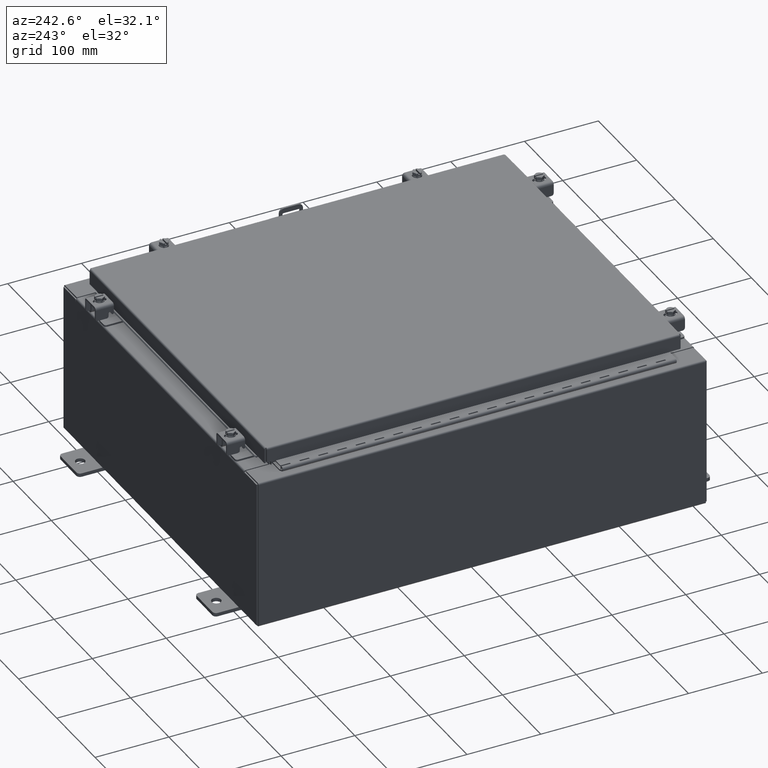
[diagram: clean part render]
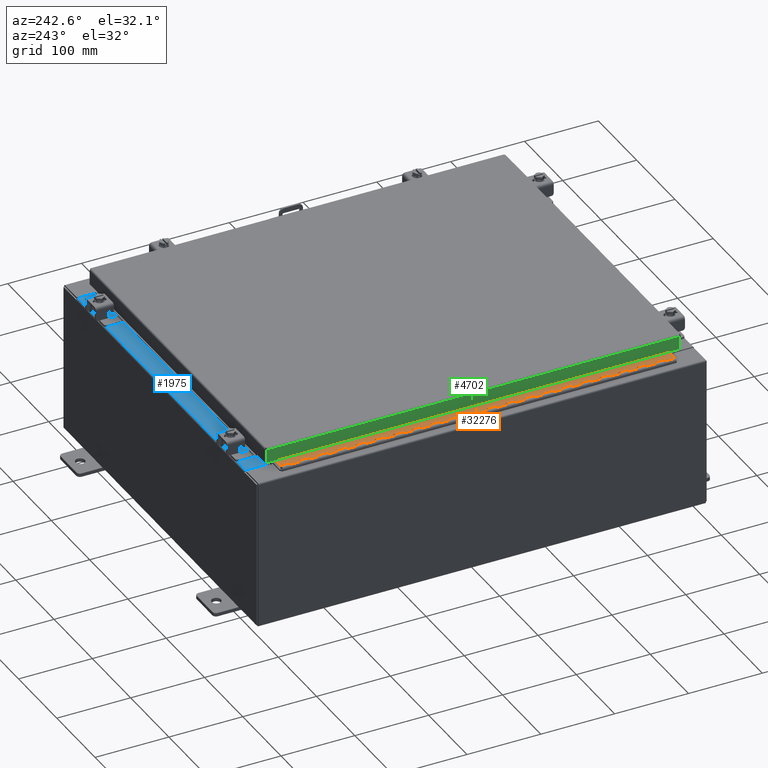
[diagram: same view with three faces highlighted in distinct colors, each labeled with its STEP entity id]
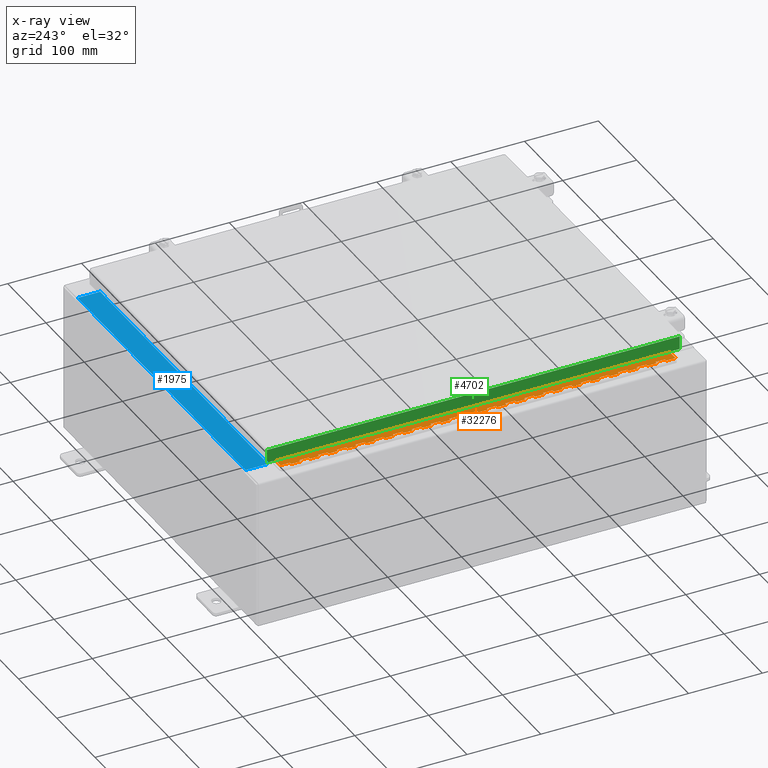
[diagram: x-ray of the same camera — body ghosted, the three highlighted faces saturated]
A machine part, auxiliary view with three faces highlighted in distinct colors.
The next image is the same camera in x-ray (body ghosted, the three faces saturated) — at least one of them is partly hidden behind the body in this view.
Their STEP definitions:

[orange] entity #32276 — the highlighted planar face has unit normal (-0, 0, 1).
#42 = LINE ( 'NONE', #29912, #31449 ) ;
#45 = VERTEX_POINT ( 'NONE', #29498 ) ;
#76 = LINE ( 'NONE', #12595, #19530 ) ;
#91 = CARTESIAN_POINT ( 'NONE',  ( -0.6869999999999987200, 0.5504999999999956600, -11.50000000000000000 ) ) ;
#126 = DIRECTION ( 'NONE',  ( -3.389037039080714800E-015, -1.000000000000000000, 5.534950327680770500E-031 ) ) ;
#138 = VECTOR ( 'NONE', #29131, 39.37007874015748100 ) ;
#173 = CARTESIAN_POINT ( 'NONE',  ( -0.6869999999999976100, 0.8005000000000001000, -16.00000000000000000 ) ) ;
#189 = CARTESIAN_POINT ( 'NONE',  ( -0.6869999999999987200, 0.5504999999999999900, -14.49999999999999800 ) ) ;
#304 = VECTOR ( 'NONE', #30487, 39.37007874015748100 ) ;
#331 = CARTESIAN_POINT ( 'NONE',  ( -0.6870000000000041600, 0.6754999999999985500, -21.00000000000000400 ) ) ;
#350 = EDGE_CURVE ( 'NONE', #18311, #8308, #5552, .T. ) ;
#405 = ORIENTED_EDGE ( 'NONE', *, *, #9804, .T. ) ;
#432 = VECTOR ( 'NONE', #7890, 39.37007874015748100 ) ;
#438 = VERTEX_POINT ( 'NONE', #5435 ) ;
#509 = VERTEX_POINT ( 'NONE', #5543 ) ;
#592 = CARTESIAN_POINT ( 'NONE',  ( -0.6870000000000041600, 0.6754999999999985500, -21.00000000000000400 ) ) ;
#608 = VERTEX_POINT ( 'NONE', #3440 ) ;
#611 = VECTOR ( 'NONE', #17604, 39.37007874015748100 ) ;
#683 = VERTEX_POINT ( 'NONE', #1338 ) ;
#783 = VECTOR ( 'NONE', #25920, 39.37007874015748100 ) ;
#907 = ORIENTED_EDGE ( 'NONE', *, *, #6052, .F. ) ;
#917 = VERTEX_POINT ( 'NONE', #13064 ) ;
#1091 = LINE ( 'NONE', #30033, #7027 ) ;
#1140 = VECTOR ( 'NONE', #12354, 39.37007874015748100 ) ;
#1208 = ORIENTED_EDGE ( 'NONE', *, *, #16838, .F. ) ;
#1212 = CARTESIAN_POINT ( 'NONE',  ( -0.6869999999999987200, 0.6754999999999964400, -19.50000000000000000 ) ) ;
#1338 = CARTESIAN_POINT ( 'NONE',  ( -0.6869999999999987200, 0.6754999999999996600, -5.999999999999999100 ) ) ;
#1377 = VERTEX_POINT ( 'NONE', #7280 ) ;
#1388 = CARTESIAN_POINT ( 'NONE',  ( -0.6869999999999987200, 0.5504999999999945500, -15.50000000000000000 ) ) ;
#1401 = CARTESIAN_POINT ( 'NONE',  ( -0.6869999999999987200, 0.5504999999999956600, -18.50000000000000000 ) ) ;
#1409 = ORIENTED_EDGE ( 'NONE', *, *, #15577, .F. ) ;
#1458 = CARTESIAN_POINT ( 'NONE',  ( -0.6870000000000041600, 0.6754999999999985500, -21.00000000000000400 ) ) ;
#1464 = CARTESIAN_POINT ( 'NONE',  ( -0.6870000000000041600, 0.6755000000000029900, -17.99999999999999600 ) ) ;
#1507 = VECTOR ( 'NONE', #14188, 39.37007874015748100 ) ;
#1564 = VERTEX_POINT ( 'NONE', #29965 ) ;
#1587 = VERTEX_POINT ( 'NONE', #19825 ) ;
#1688 = DIRECTION ( 'NONE',  ( 2.922729653843850500E-028, 6.002361762138956300E-031, -1.000000000000000000 ) ) ;
#1708 = LINE ( 'NONE', #12740, #27959 ) ;
#1779 = EDGE_CURVE ( 'NONE', #6017, #45, #1905, .T. ) ;
#1797 = VERTEX_POINT ( 'NONE', #25823 ) ;
#1883 = LINE ( 'NONE', #2032, #27328 ) ;
#1905 = LINE ( 'NONE', #13035, #14605 ) ;
#2023 = CARTESIAN_POINT ( 'NONE',  ( -0.6869999999999987200, 0.6754999999999996600, -6.499999999999999100 ) ) ;
#2029 = CARTESIAN_POINT ( 'NONE',  ( -0.6870000000000041600, 0.8005000000000001000, -1.999999999999998400 ) ) ;
#2032 = CARTESIAN_POINT ( 'NONE',  ( -0.6869999999999998300, 0.07549999999999350300, -21.00000000000000000 ) ) ;
#2075 = VECTOR ( 'NONE', #21018, 39.37007874015748100 ) ;
#2081 = VERTEX_POINT ( 'NONE', #4153 ) ;
#2126 = ORIENTED_EDGE ( 'NONE', *, *, #16691, .F. ) ;
#2139 = CARTESIAN_POINT ( 'NONE',  ( -0.6870000000000052700, 0.5504999999999945500, -4.499999999999998200 ) ) ;
#2259 = VERTEX_POINT ( 'NONE', #7358 ) ;
#2322 = CARTESIAN_POINT ( 'NONE',  ( -0.6870000000000041600, 0.8005000000000023200, -12.49999999999999800 ) ) ;
#2365 = LINE ( 'NONE', #28916, #22624 ) ;
#2429 = ORIENTED_EDGE ( 'NONE', *, *, #29969, .F. ) ;
#2462 = CARTESIAN_POINT ( 'NONE',  ( -0.6869999999999987200, 0.5504999999999956600, -1.999999999999998400 ) ) ;
#2532 = ORIENTED_EDGE ( 'NONE', *, *, #28612, .F. ) ;
#2575 = DIRECTION ( 'NONE',  ( -2.922729653843850500E-028, -6.002361762138956300E-031, 1.000000000000000000 ) ) ;
#2617 = EDGE_CURVE ( 'NONE', #917, #16768, #24131, .T. ) ;
#2623 = ORIENTED_EDGE ( 'NONE', *, *, #25132, .F. ) ;
#2641 = VECTOR ( 'NONE', #12970, 39.37007874015748100 ) ;
#2693 = EDGE_CURVE ( 'NONE', #7999, #25757, #21759, .T. ) ;
#2697 = EDGE_CURVE ( 'NONE', #17661, #9188, #23338, .T. ) ;
#2793 = EDGE_CURVE ( 'NONE', #16128, #26291, #20163, .T. ) ;
#2851 = ORIENTED_EDGE ( 'NONE', *, *, #2939, .F. ) ;
#2918 = LINE ( 'NONE', #12127, #23167 ) ;
#2939 = EDGE_CURVE ( 'NONE', #14576, #11944, #28929, .T. ) ;
#2961 = ORIENTED_EDGE ( 'NONE', *, *, #14551, .T. ) ;
#2989 = EDGE_CURVE ( 'NONE', #32219, #509, #1883, .T. ) ;
#2998 = EDGE_CURVE ( 'NONE', #16641, #1377, #1091, .T. ) ;
#3093 = VECTOR ( 'NONE', #26463, 39.37007874015748100 ) ;
#3181 = EDGE_CURVE ( 'NONE', #28315, #26260, #29293, .T. ) ;
#3182 = VERTEX_POINT ( 'NONE', #12991 ) ;
#3195 = DIRECTION ( 'NONE',  ( -3.389037039080714800E-015, -1.000000000000000000, 5.534950327680770500E-031 ) ) ;
#3343 = ORIENTED_EDGE ( 'NONE', *, *, #19802, .F. ) ;
#3385 = EDGE_CURVE ( 'NONE', #11944, #23803, #3437, .T. ) ;
#3437 = LINE ( 'NONE', #4235, #22897 ) ;
#3440 = CARTESIAN_POINT ( 'NONE',  ( -0.6870000000000019400, 0.6755000000000029900, -6.999999999999998200 ) ) ;
#3558 = VECTOR ( 'NONE', #19131, 39.37007874015748100 ) ;
#3605 = LINE ( 'NONE', #10598, #30648 ) ;
#3622 = ORIENTED_EDGE ( 'NONE', *, *, #29389, .F. ) ;
#3727 = ORIENTED_EDGE ( 'NONE', *, *, #20194, .F. ) ;
#3737 = LINE ( 'NONE', #19212, #16442 ) ;
#3742 = VERTEX_POINT ( 'NONE', #31225 ) ;
#3793 = ORIENTED_EDGE ( 'NONE', *, *, #23030, .F. ) ;
#3826 = DIRECTION ( 'NONE',  ( 2.922729653843850500E-028, 6.002361762138956300E-031, -1.000000000000000000 ) ) ;
#3832 = VERTEX_POINT ( 'NONE', #1212 ) ;
#3847 = CARTESIAN_POINT ( 'NONE',  ( -0.6870000000000041600, 0.6754999999999996600, -14.49999999999999800 ) ) ;
#3888 = DIRECTION ( 'NONE',  ( 3.389037039080714800E-015, 1.000000000000000000, -5.534950327680770500E-031 ) ) ;
#3900 = DIRECTION ( 'NONE',  ( 2.922729653843850500E-028, 6.002361762138956300E-031, -1.000000000000000000 ) ) ;
#3934 = ORIENTED_EDGE ( 'NONE', *, *, #29175, .F. ) ;
#3955 = ORIENTED_EDGE ( 'NONE', *, *, #9740, .F. ) ;
#4065 = CARTESIAN_POINT ( 'NONE',  ( -0.6869999999999998300, 0.07549999999999350300, -21.00000000000000000 ) ) ;
#4067 = ORIENTED_EDGE ( 'NONE', *, *, #7315, .F. ) ;
#4095 = ORIENTED_EDGE ( 'NONE', *, *, #32456, .F. ) ;
#4153 = CARTESIAN_POINT ( 'NONE',  ( -0.6869999999999987200, 0.6754999999999964400, -3.000000000000001800 ) ) ;
#4170 = CARTESIAN_POINT ( 'NONE',  ( -0.6870000000000041600, 0.6754999999999964400, -8.500000000000000000 ) ) ;
#4184 = CARTESIAN_POINT ( 'NONE',  ( -0.6870000000000041600, 0.6754999999999996600, -3.999999999999996900 ) ) ;
#4186 = ORIENTED_EDGE ( 'NONE', *, *, #22115, .T. ) ;
#4233 = LINE ( 'NONE', #331, #2641 ) ;
#4235 = CARTESIAN_POINT ( 'NONE',  ( -0.6870000000000052700, 0.5504999999999999900, -17.50000000000000000 ) ) ;
#4253 = CARTESIAN_POINT ( 'NONE',  ( -0.6870000000000041600, 0.6754999999999996600, -20.50000000000000700 ) ) ;
#4256 = LINE ( 'NONE', #27327, #30498 ) ;
#4290 = VECTOR ( 'NONE', #10827, 39.37007874015748100 ) ;
#4292 = DIRECTION ( 'NONE',  ( 3.369016658928389900E-015, 1.000000000000000000, -5.601788063925271600E-031 ) ) ;
#4449 = DIRECTION ( 'NONE',  ( -2.922729653843850500E-028, -6.002361762138956300E-031, 1.000000000000000000 ) ) ;
#4473 = LINE ( 'NONE', #20968, #32318 ) ;
#4505 = VERTEX_POINT ( 'NONE', #27272 ) ;
#4543 = DIRECTION ( 'NONE',  ( 2.922729653843850500E-028, 6.002361762138956300E-031, -1.000000000000000000 ) ) ;
#4668 = LINE ( 'NONE', #28386, #17374 ) ;
#4670 = CARTESIAN_POINT ( 'NONE',  ( -0.6869999999999987200, 0.5504999999999999900, -16.00000000000000000 ) ) ;
#4678 = VECTOR ( 'NONE', #32064, 39.37007874015748100 ) ;
#4788 = AXIS2_PLACEMENT_3D ( 'NONE', #27063, #22047, #6822 ) ;
#4867 = CARTESIAN_POINT ( 'NONE',  ( -0.6870000000000041600, 0.6754999999999985500, -21.00000000000000400 ) ) ;
#4876 = CARTESIAN_POINT ( 'NONE',  ( -0.6869999999999998300, 0.8004999999999957700, -4.499999999999998200 ) ) ;
#4884 = CARTESIAN_POINT ( 'NONE',  ( -0.6870000000000041600, 0.6754999999999996600, -17.50000000000000000 ) ) ;
#4893 = LINE ( 'NONE', #2322, #10042 ) ;
#4954 = DIRECTION ( 'NONE',  ( -2.922729653843850500E-028, -6.002361762138956300E-031, 1.000000000000000000 ) ) ;
#4965 = LINE ( 'NONE', #22710, #611 ) ;
#5005 = VERTEX_POINT ( 'NONE', #1464 ) ;
#5043 = DIRECTION ( 'NONE',  ( 3.389037039080714800E-015, 1.000000000000000000, -5.534950327680770500E-031 ) ) ;
#5073 = ORIENTED_EDGE ( 'NONE', *, *, #24740, .F. ) ;
#5312 = CARTESIAN_POINT ( 'NONE',  ( -0.6870000000000041600, 0.6754999999999964400, -4.499999999999998200 ) ) ;
#5396 = LINE ( 'NONE', #173, #12140 ) ;
#5435 = CARTESIAN_POINT ( 'NONE',  ( -0.6870000000000041600, 0.6754999999999996600, -10.50000000000000000 ) ) ;
#5517 = ORIENTED_EDGE ( 'NONE', *, *, #2793, .F. ) ;
#5543 = CARTESIAN_POINT ( 'NONE',  ( -0.6870000000000063800, 0.07550000000000005300, 0.0000000000000000000 ) ) ;
#5552 = LINE ( 'NONE', #7668, #12306 ) ;
#5602 = EDGE_CURVE ( 'NONE', #8308, #6942, #5694, .T. ) ;
#5605 = VERTEX_POINT ( 'NONE', #29523 ) ;
#5662 = VECTOR ( 'NONE', #9146, 39.37007874015748100 ) ;
#5665 = LINE ( 'NONE', #6724, #25153 ) ;
#5668 = DIRECTION ( 'NONE',  ( -2.922729653843850500E-028, -6.002361762138956300E-031, 1.000000000000000000 ) ) ;
#5684 = LINE ( 'NONE', #13989, #31951 ) ;
#5694 = LINE ( 'NONE', #24384, #19211 ) ;
#5769 = EDGE_CURVE ( 'NONE', #509, #26793, #20388, .T. ) ;
#5917 = CARTESIAN_POINT ( 'NONE',  ( -0.6870000000000041600, 0.5504999999999956600, -0.4999999999999973900 ) ) ;
#5970 = ORIENTED_EDGE ( 'NONE', *, *, #21469, .F. ) ;
#6011 = CARTESIAN_POINT ( 'NONE',  ( -0.6869999999999987200, 0.5504999999999999900, -2.500000000000000000 ) ) ;
#6017 = VERTEX_POINT ( 'NONE', #29062 ) ;
#6018 = VECTOR ( 'NONE', #17332, 39.37007874015748100 ) ;
#6052 = EDGE_CURVE ( 'NONE', #16462, #19285, #27561, .T. ) ;
#6111 = EDGE_CURVE ( 'NONE', #16128, #2081, #31930, .T. ) ;
#6241 = ORIENTED_EDGE ( 'NONE', *, *, #7451, .T. ) ;
#6458 = LINE ( 'NONE', #20071, #19165 ) ;
#6514 = VECTOR ( 'NONE', #12607, 39.37007874015748100 ) ;
#6539 = EDGE_CURVE ( 'NONE', #23803, #5005, #8809, .T. ) ;
#6541 = VERTEX_POINT ( 'NONE', #26024 ) ;
#6617 = DIRECTION ( 'NONE',  ( 2.922729653843850500E-028, 6.002361762138956300E-031, -1.000000000000000000 ) ) ;
#6653 = DIRECTION ( 'NONE',  ( 2.922729653843850500E-028, 6.002361762138956300E-031, -1.000000000000000000 ) ) ;
#6724 = CARTESIAN_POINT ( 'NONE',  ( -0.6870000000000084900, -0.6245000000000068300, -21.00000000000000000 ) ) ;
#6777 = VECTOR ( 'NONE', #27752, 39.37007874015748100 ) ;
#6807 = LINE ( 'NONE', #19646, #21138 ) ;
#6813 = VERTEX_POINT ( 'NONE', #14425 ) ;
#6822 = DIRECTION ( 'NONE',  ( 3.369016658928389100E-015, 1.000000000000000000, -5.601788063925272500E-031 ) ) ;
#6836 = EDGE_CURVE ( 'NONE', #14576, #28326, #6807, .T. ) ;
#6849 = VECTOR ( 'NONE', #20622, 39.37007874015748100 ) ;
#6874 = EDGE_CURVE ( 'NONE', #18140, #2259, #12766, .T. ) ;
#6909 = VERTEX_POINT ( 'NONE', #4670 ) ;
#6942 = VERTEX_POINT ( 'NONE', #25218 ) ;
#7014 = DIRECTION ( 'NONE',  ( -3.389037039080714800E-015, -1.000000000000000000, 5.534950327680770500E-031 ) ) ;
#7027 = VECTOR ( 'NONE', #7132, 39.37007874015748100 ) ;
#7132 = DIRECTION ( 'NONE',  ( 3.389037039080714800E-015, 1.000000000000000000, -5.534950327680770500E-031 ) ) ;
#7142 = LINE ( 'NONE', #20089, #24201 ) ;
#7150 = LINE ( 'NONE', #30510, #19853 ) ;
#7202 = ORIENTED_EDGE ( 'NONE', *, *, #25625, .T. ) ;
#7280 = CARTESIAN_POINT ( 'NONE',  ( -0.6869999999999987200, 0.6754999999999996600, -19.00000000000000000 ) ) ;
#7315 = EDGE_CURVE ( 'NONE', #24534, #15454, #15136, .T. ) ;
#7358 = CARTESIAN_POINT ( 'NONE',  ( -0.6869999999999987200, 0.5504999999999999900, -2.500000000000000000 ) ) ;
#7379 = VECTOR ( 'NONE', #30652, 39.37007874015748100 ) ;
#7428 = DIRECTION ( 'NONE',  ( -2.922729653843850500E-028, -6.002361762138956300E-031, 1.000000000000000000 ) ) ;
#7451 = EDGE_CURVE ( 'NONE', #9753, #25757, #3605, .T. ) ;
#7490 = DIRECTION ( 'NONE',  ( -2.922729653843850500E-028, -6.002361762138956300E-031, 1.000000000000000000 ) ) ;
#7609 = DIRECTION ( 'NONE',  ( -3.389037039080714800E-015, -1.000000000000000000, 5.534950327680770500E-031 ) ) ;
#7668 = CARTESIAN_POINT ( 'NONE',  ( -0.6870000000000041600, 0.8005000000000001000, -5.499999999999997300 ) ) ;
#7790 = CARTESIAN_POINT ( 'NONE',  ( -0.6869999999999998300, 0.5504999999999999900, -12.49999999999999800 ) ) ;
#7824 = CARTESIAN_POINT ( 'NONE',  ( -0.6869999999999987200, 0.6754999999999996600, -16.00000000000000000 ) ) ;
#7842 = VECTOR ( 'NONE', #21496, 39.37007874015748100 ) ;
#7890 = DIRECTION ( 'NONE',  ( 3.389037039080714800E-015, 1.000000000000000000, -5.534950327680770500E-031 ) ) ;
#7949 = CARTESIAN_POINT ( 'NONE',  ( -0.6870000000000041600, 0.8005000000000001000, -18.50000000000000000 ) ) ;
#7999 = VERTEX_POINT ( 'NONE', #28045 ) ;
#8002 = CARTESIAN_POINT ( 'NONE',  ( -0.6869999999999987200, 0.6754999999999996600, -9.499999999999998200 ) ) ;
#8005 = VECTOR ( 'NONE', #9043, 39.37007874015748100 ) ;
#8025 = DIRECTION ( 'NONE',  ( 3.389037039080714800E-015, 1.000000000000000000, -5.534950327680770500E-031 ) ) ;
#8152 = ORIENTED_EDGE ( 'NONE', *, *, #12278, .F. ) ;
#8216 = EDGE_CURVE ( 'NONE', #30651, #608, #2365, .T. ) ;
#8249 = VECTOR ( 'NONE', #2575, 39.37007874015748100 ) ;
#8265 = CARTESIAN_POINT ( 'NONE',  ( -0.6870000000000041600, 0.8005000000000001000, -5.000000000000000000 ) ) ;
#8268 = VECTOR ( 'NONE', #13752, 39.37007874015748100 ) ;
#8308 = VERTEX_POINT ( 'NONE', #11427 ) ;
#8451 = CARTESIAN_POINT ( 'NONE',  ( -0.6870000000000009400, 0.5504999999999934400, -19.50000000000000000 ) ) ;
#8498 = CARTESIAN_POINT ( 'NONE',  ( -0.6869999999999976100, 0.6755000000000007700, -5.499999999999997300 ) ) ;
#8577 = VECTOR ( 'NONE', #27636, 39.37007874015748100 ) ;
#8714 = EDGE_CURVE ( 'NONE', #21564, #7999, #15042, .T. ) ;
#8720 = EDGE_CURVE ( 'NONE', #9897, #25720, #27788, .T. ) ;
#8732 = VECTOR ( 'NONE', #14537, 39.37007874015748100 ) ;
#8744 = DIRECTION ( 'NONE',  ( -3.389037039080714800E-015, -1.000000000000000000, 5.534950327680770500E-031 ) ) ;
#8809 = LINE ( 'NONE', #28599, #2075 ) ;
#9001 = VECTOR ( 'NONE', #30810, 39.37007874015748100 ) ;
#9043 = DIRECTION ( 'NONE',  ( 2.922729653843850500E-028, 6.002361762138956300E-031, -1.000000000000000000 ) ) ;
#9079 = VECTOR ( 'NONE', #27526, 39.37007874015748100 ) ;
#9100 = VECTOR ( 'NONE', #30838, 39.37007874015748100 ) ;
#9132 = LINE ( 'NONE', #30603, #26243 ) ;
#9146 = DIRECTION ( 'NONE',  ( -2.922729653843850500E-028, -6.002361762138956300E-031, 1.000000000000000000 ) ) ;
#9188 = VERTEX_POINT ( 'NONE', #7824 ) ;
#9289 = VECTOR ( 'NONE', #29916, 39.37007874015748100 ) ;
#9380 = LINE ( 'NONE', #25055, #8577 ) ;
#9394 = DIRECTION ( 'NONE',  ( -2.922729653843850500E-028, -6.002361762138956300E-031, 1.000000000000000000 ) ) ;
#9445 = VECTOR ( 'NONE', #30466, 39.37007874015748100 ) ;
#9452 = ORIENTED_EDGE ( 'NONE', *, *, #32498, .F. ) ;
#9492 = EDGE_CURVE ( 'NONE', #14623, #11582, #19402, .T. ) ;
#9692 = CARTESIAN_POINT ( 'NONE',  ( -0.6870000000000041600, 0.5504999999999999900, -3.499999999999999100 ) ) ;
#9696 = EDGE_CURVE ( 'NONE', #3742, #16768, #19782, .T. ) ;
#9740 = EDGE_CURVE ( 'NONE', #9824, #2081, #25761, .T. ) ;
#9753 = VERTEX_POINT ( 'NONE', #30380 ) ;
#9763 = DIRECTION ( 'NONE',  ( -3.389037039080714800E-015, -1.000000000000000000, 5.534950327680770500E-031 ) ) ;
#9804 = EDGE_CURVE ( 'NONE', #31563, #5605, #16602, .T. ) ;
#9824 = VERTEX_POINT ( 'NONE', #25582 ) ;
#9828 = VERTEX_POINT ( 'NONE', #7790 ) ;
#9892 = LINE ( 'NONE', #32638, #9079 ) ;
#9897 = VERTEX_POINT ( 'NONE', #4170 ) ;
#9925 = ORIENTED_EDGE ( 'NONE', *, *, #8720, .F. ) ;
#10042 = VECTOR ( 'NONE', #27775, 39.37007874015748100 ) ;
#10069 = CARTESIAN_POINT ( 'NONE',  ( -0.6869999999999976100, 0.6754999999999985500, -15.50000000000000000 ) ) ;
#10084 = LINE ( 'NONE', #2029, #9289 ) ;
#10131 = EDGE_CURVE ( 'NONE', #3742, #31412, #27344, .T. ) ;
#10229 = EDGE_CURVE ( 'NONE', #14668, #28425, #4668, .T. ) ;
#10244 = DIRECTION ( 'NONE',  ( -2.922729653843850500E-028, -6.002361762138956300E-031, 1.000000000000000000 ) ) ;
#10321 = EDGE_CURVE ( 'NONE', #30354, #32801, #14986, .T. ) ;
#10328 = ORIENTED_EDGE ( 'NONE', *, *, #23920, .T. ) ;
#10598 = CARTESIAN_POINT ( 'NONE',  ( -0.6870000000000041600, 0.6754999999999985500, -21.00000000000000400 ) ) ;
#10637 = ORIENTED_EDGE ( 'NONE', *, *, #21542, .F. ) ;
#10774 = ORIENTED_EDGE ( 'NONE', *, *, #3181, .T. ) ;
#10827 = DIRECTION ( 'NONE',  ( 3.389037039080714800E-015, 1.000000000000000000, -5.534950327680770500E-031 ) ) ;
#11037 = LINE ( 'NONE', #8265, #4290 ) ;
#11050 = CARTESIAN_POINT ( 'NONE',  ( -0.6869999999999987200, 0.5504999999999999900, -19.00000000000000000 ) ) ;
#11141 = CARTESIAN_POINT ( 'NONE',  ( -0.6870000000000009400, 0.5504999999999999900, -6.499999999999999100 ) ) ;
#11189 = ORIENTED_EDGE ( 'NONE', *, *, #6111, .T. ) ;
#11239 = VERTEX_POINT ( 'NONE', #29859 ) ;
#11244 = LINE ( 'NONE', #32273, #17217 ) ;
#11321 = CARTESIAN_POINT ( 'NONE',  ( -0.6869999999999987200, 0.6755000000000007700, 0.0000000000000000000 ) ) ;
#11389 = CARTESIAN_POINT ( 'NONE',  ( -0.6870000000000041600, 0.6754999999999996600, -17.00000000000000000 ) ) ;
#11427 = CARTESIAN_POINT ( 'NONE',  ( -0.6869999999999987200, 0.5504999999999999900, -5.499999999999997300 ) ) ;
#11435 = LINE ( 'NONE', #9692, #30960 ) ;
#11582 = VERTEX_POINT ( 'NONE', #26177 ) ;
#11672 = ORIENTED_EDGE ( 'NONE', *, *, #26353, .F. ) ;
#11936 = ORIENTED_EDGE ( 'NONE', *, *, #22109, .F. ) ;
#11944 = VERTEX_POINT ( 'NONE', #22689 ) ;
#12107 = DIRECTION ( 'NONE',  ( 3.389037039080714800E-015, 1.000000000000000000, -5.534950327680770500E-031 ) ) ;
#12127 = CARTESIAN_POINT ( 'NONE',  ( -0.6869999999999976100, 0.8005000000000023200, -6.999999999999998200 ) ) ;
#12140 = VECTOR ( 'NONE', #20483, 39.37007874015748100 ) ;
#12216 = LINE ( 'NONE', #16923, #4678 ) ;
#12233 = VECTOR ( 'NONE', #22692, 39.37007874015748100 ) ;
#12278 = EDGE_CURVE ( 'NONE', #30651, #15736, #20397, .T. ) ;
#12306 = VECTOR ( 'NONE', #22881, 39.37007874015748100 ) ;
#12314 = FACE_OUTER_BOUND ( 'NONE', #20661, .T. ) ;
#12343 = LINE ( 'NONE', #24449, #19106 ) ;
#12354 = DIRECTION ( 'NONE',  ( -2.922729653843850500E-028, -6.002361762138956300E-031, 1.000000000000000000 ) ) ;
#12385 = CARTESIAN_POINT ( 'NONE',  ( -0.6869999999999976100, 0.6754999999999996600, -11.99999999999999800 ) ) ;
#12561 = VERTEX_POINT ( 'NONE', #27674 ) ;
#12565 = VECTOR ( 'NONE', #9394, 39.37007874015748100 ) ;
#12595 = CARTESIAN_POINT ( 'NONE',  ( -0.6869999999999998300, 0.8005000000000001000, -11.00000000000000000 ) ) ;
#12607 = DIRECTION ( 'NONE',  ( -3.389037039080714800E-015, -1.000000000000000000, 5.534950327680770500E-031 ) ) ;
#12667 = CARTESIAN_POINT ( 'NONE',  ( -0.6870000000000052700, 0.5504999999999956600, -7.499999999999998200 ) ) ;
#12705 = CARTESIAN_POINT ( 'NONE',  ( -0.6869999999999987200, 0.5504999999999999900, -8.999999999999998200 ) ) ;
#12740 = CARTESIAN_POINT ( 'NONE',  ( -0.6869999999999987200, 0.5504999999999956600, -18.50000000000000000 ) ) ;
#12766 = LINE ( 'NONE', #32571, #6018 ) ;
#12824 = CARTESIAN_POINT ( 'NONE',  ( -0.6870000000000052700, 0.5504999999999934400, -14.00000000000000000 ) ) ;
#12858 = CARTESIAN_POINT ( 'NONE',  ( -0.6870000000000009400, 0.8005000000000001000, -14.49999999999999800 ) ) ;
#12910 = ORIENTED_EDGE ( 'NONE', *, *, #2998, .F. ) ;
#12970 = DIRECTION ( 'NONE',  ( -2.922729653843850500E-028, -6.002361762138956300E-031, 1.000000000000000000 ) ) ;
#12991 = CARTESIAN_POINT ( 'NONE',  ( -0.6869999999999998300, 0.6754999999999964400, -10.00000000000000000 ) ) ;
#13004 = VERTEX_POINT ( 'NONE', #21300 ) ;
#13020 = CARTESIAN_POINT ( 'NONE',  ( -0.6869999999999976100, 0.8005000000000012100, -20.50000000000000700 ) ) ;
#13035 = CARTESIAN_POINT ( 'NONE',  ( -0.6870000000000041600, 0.6754999999999985500, -21.00000000000000400 ) ) ;
#13064 = CARTESIAN_POINT ( 'NONE',  ( -0.6870000000000052700, 0.5504999999999999900, -0.9999999999999992200 ) ) ;
#13071 = ORIENTED_EDGE ( 'NONE', *, *, #3385, .F. ) ;
#13076 = CARTESIAN_POINT ( 'NONE',  ( -0.6869999999999998300, 0.6755000000000007700, -16.50000000000000000 ) ) ;
#13092 = ORIENTED_EDGE ( 'NONE', *, *, #9696, .T. ) ;
#13230 = ORIENTED_EDGE ( 'NONE', *, *, #29516, .F. ) ;
#13339 = ORIENTED_EDGE ( 'NONE', *, *, #28365, .F. ) ;
#13403 = VERTEX_POINT ( 'NONE', #12705 ) ;
#13600 = EDGE_CURVE ( 'NONE', #6813, #917, #31071, .T. ) ;
#13627 = VECTOR ( 'NONE', #32746, 39.37007874015748100 ) ;
#13662 = DIRECTION ( 'NONE',  ( -2.922729653843850500E-028, -6.002361762138956300E-031, 1.000000000000000000 ) ) ;
#13727 = ORIENTED_EDGE ( 'NONE', *, *, #21617, .F. ) ;
#13752 = DIRECTION ( 'NONE',  ( 2.922729653843850500E-028, 6.002361762138956300E-031, -1.000000000000000000 ) ) ;
#13799 = VECTOR ( 'NONE', #126, 39.37007874015748100 ) ;
#13884 = CARTESIAN_POINT ( 'NONE',  ( -0.6869999999999976100, 0.8005000000000001000, -7.499999999999998200 ) ) ;
#13989 = CARTESIAN_POINT ( 'NONE',  ( -0.6870000000000041600, 0.5504999999999999900, -13.50000000000000000 ) ) ;
#14003 = EDGE_CURVE ( 'NONE', #19285, #28378, #15513, .T. ) ;
#14005 = CARTESIAN_POINT ( 'NONE',  ( -0.6870000000000041600, 0.6754999999999996600, -1.999999999999998400 ) ) ;
#14057 = VERTEX_POINT ( 'NONE', #8002 ) ;
#14145 = LINE ( 'NONE', #592, #32874 ) ;
#14163 = VERTEX_POINT ( 'NONE', #18571 ) ;
#14188 = DIRECTION ( 'NONE',  ( -2.922729653843850500E-028, -6.002361762138956300E-031, 1.000000000000000000 ) ) ;
#14249 = LINE ( 'NONE', #23348, #783 ) ;
#14285 = VECTOR ( 'NONE', #5043, 39.37007874015748100 ) ;
#14331 = DIRECTION ( 'NONE',  ( 2.922729653843850500E-028, 6.002361762138956300E-031, -1.000000000000000000 ) ) ;
#14411 = EDGE_CURVE ( 'NONE', #13004, #30677, #29031, .T. ) ;
#14425 = CARTESIAN_POINT ( 'NONE',  ( -0.6870000000000041600, 0.5504999999999956600, -0.4999999999999973900 ) ) ;
#14464 = DIRECTION ( 'NONE',  ( -2.922729653843850500E-028, -6.002361762138956300E-031, 1.000000000000000000 ) ) ;
#14537 = DIRECTION ( 'NONE',  ( 2.922729653843850500E-028, 6.002361762138956300E-031, -1.000000000000000000 ) ) ;
#14551 = EDGE_CURVE ( 'NONE', #14057, #30882, #7142, .T. ) ;
#14552 = ORIENTED_EDGE ( 'NONE', *, *, #22723, .T. ) ;
#14576 = VERTEX_POINT ( 'NONE', #4884 ) ;
#14594 = ORIENTED_EDGE ( 'NONE', *, *, #6874, .F. ) ;
#14605 = VECTOR ( 'NONE', #30851, 39.37007874015748100 ) ;
#14623 = VERTEX_POINT ( 'NONE', #17866 ) ;
#14668 = VERTEX_POINT ( 'NONE', #5312 ) ;
#14790 = DIRECTION ( 'NONE',  ( -2.922729653843850500E-028, -6.002361762138956300E-031, 1.000000000000000000 ) ) ;
#14808 = CARTESIAN_POINT ( 'NONE',  ( -0.6870000000000052700, 0.5504999999999999900, -11.00000000000000000 ) ) ;
#14845 = LINE ( 'NONE', #24764, #21616 ) ;
#14986 = LINE ( 'NONE', #21022, #27728 ) ;
#15004 = VECTOR ( 'NONE', #3888, 39.37007874015748100 ) ;
#15042 = LINE ( 'NONE', #16200, #8268 ) ;
#15117 = EDGE_CURVE ( 'NONE', #438, #4505, #9892, .T. ) ;
#15136 = LINE ( 'NONE', #20166, #6777 ) ;
#15140 = ORIENTED_EDGE ( 'NONE', *, *, #25891, .F. ) ;
#15179 = ORIENTED_EDGE ( 'NONE', *, *, #14411, .F. ) ;
#15242 = EDGE_CURVE ( 'NONE', #14057, #30354, #7150, .T. ) ;
#15255 = DIRECTION ( 'NONE',  ( 2.922729653843850500E-028, 6.002361762138956300E-031, -1.000000000000000000 ) ) ;
#15281 = ORIENTED_EDGE ( 'NONE', *, *, #21474, .F. ) ;
#15395 = CARTESIAN_POINT ( 'NONE',  ( -0.6869999999999976100, 0.6754999999999996600, -2.500000000000000000 ) ) ;
#15400 = LINE ( 'NONE', #16373, #7842 ) ;
#15451 = CARTESIAN_POINT ( 'NONE',  ( -0.6870000000000041600, 0.8005000000000012100, -14.99999999999999800 ) ) ;
#15454 = VERTEX_POINT ( 'NONE', #11141 ) ;
#15513 = LINE ( 'NONE', #15451, #432 ) ;
#15577 = EDGE_CURVE ( 'NONE', #1797, #6909, #17059, .T. ) ;
#15736 = VERTEX_POINT ( 'NONE', #17663 ) ;
#15818 = LINE ( 'NONE', #22781, #8249 ) ;
#15863 = LINE ( 'NONE', #13020, #9100 ) ;
#16128 = VERTEX_POINT ( 'NONE', #16735 ) ;
#16200 = CARTESIAN_POINT ( 'NONE',  ( -0.6869999999999987200, 0.5504999999999956600, -11.50000000000000000 ) ) ;
#16373 = CARTESIAN_POINT ( 'NONE',  ( -0.6869999999999987200, 0.8005000000000001000, -3.999999999999996900 ) ) ;
#16385 = CARTESIAN_POINT ( 'NONE',  ( -0.6869999999999987200, 0.5504999999999999900, -8.000000000000000000 ) ) ;
#16422 = DIRECTION ( 'NONE',  ( -3.389037039080714800E-015, -1.000000000000000000, 5.534950327680770500E-031 ) ) ;
#16423 = VECTOR ( 'NONE', #21132, 39.37007874015748100 ) ;
#16433 = CARTESIAN_POINT ( 'NONE',  ( -0.6869999999999976100, 0.8005000000000001000, -0.9999999999999992200 ) ) ;
#16442 = VECTOR ( 'NONE', #6653, 39.37007874015748100 ) ;
#16462 = VERTEX_POINT ( 'NONE', #189 ) ;
#16483 = CARTESIAN_POINT ( 'NONE',  ( -0.6869999999999976100, 0.8005000000000001000, -20.00000000000000000 ) ) ;
#16560 = EDGE_CURVE ( 'NONE', #6541, #18166, #11037, .T. ) ;
#16586 = DIRECTION ( 'NONE',  ( 3.389037039080714800E-015, 1.000000000000000000, -5.534950327680770500E-031 ) ) ;
#16602 = LINE ( 'NONE', #30589, #22565 ) ;
#16635 = VECTOR ( 'NONE', #4954, 39.37007874015748100 ) ;
#16641 = VERTEX_POINT ( 'NONE', #11050 ) ;
#16691 = EDGE_CURVE ( 'NONE', #22930, #28425, #15400, .T. ) ;
#16692 = ORIENTED_EDGE ( 'NONE', *, *, #15242, .F. ) ;
#16735 = CARTESIAN_POINT ( 'NONE',  ( -0.6870000000000009400, 0.6754999999999996600, -3.499999999999999100 ) ) ;
#16746 = CARTESIAN_POINT ( 'NONE',  ( -0.6870000000000019400, 0.6754999999999996600, -13.50000000000000000 ) ) ;
#16768 = VERTEX_POINT ( 'NONE', #26835 ) ;
#16838 = EDGE_CURVE ( 'NONE', #15454, #1587, #12216, .T. ) ;
#16923 = CARTESIAN_POINT ( 'NONE',  ( -0.6870000000000009400, 0.5504999999999999900, -6.499999999999999100 ) ) ;
#16949 = VERTEX_POINT ( 'NONE', #14808 ) ;
#17059 = LINE ( 'NONE', #1388, #3558 ) ;
#17217 = VECTOR ( 'NONE', #14464, 39.37007874015748100 ) ;
#17332 = DIRECTION ( 'NONE',  ( -3.389037039080714800E-015, -1.000000000000000000, 5.534950327680770500E-031 ) ) ;
#17374 = VECTOR ( 'NONE', #30935, 39.37007874015748100 ) ;
#17414 = VERTEX_POINT ( 'NONE', #27240 ) ;
#17454 = CARTESIAN_POINT ( 'NONE',  ( -0.6870000000000041600, 0.6754999999999985500, -21.00000000000000400 ) ) ;
#17531 = DIRECTION ( 'NONE',  ( -3.389037039080714800E-015, -1.000000000000000000, 5.534950327680770500E-031 ) ) ;
#17534 = VECTOR ( 'NONE', #23684, 39.37007874015748100 ) ;
#17604 = DIRECTION ( 'NONE',  ( -3.389037039080714800E-015, -1.000000000000000000, 5.534950327680770500E-031 ) ) ;
#17627 = EDGE_CURVE ( 'NONE', #18311, #18166, #4233, .T. ) ;
#17636 = ORIENTED_EDGE ( 'NONE', *, *, #27535, .T. ) ;
#17661 = VERTEX_POINT ( 'NONE', #13076 ) ;
#17663 = CARTESIAN_POINT ( 'NONE',  ( -0.6870000000000052700, 0.5504999999999956600, -7.499999999999998200 ) ) ;
#17753 = DIRECTION ( 'NONE',  ( 2.922729653843850500E-028, 6.002361762138956300E-031, -1.000000000000000000 ) ) ;
#17866 = CARTESIAN_POINT ( 'NONE',  ( -0.6870000000000041600, 0.5504999999999999900, -20.00000000000000000 ) ) ;
#17890 = CARTESIAN_POINT ( 'NONE',  ( -0.6870000000000041600, 0.8004999999999978800, -15.50000000000000000 ) ) ;
#17988 = ORIENTED_EDGE ( 'NONE', *, *, #10321, .F. ) ;
#18018 = EDGE_CURVE ( 'NONE', #12561, #26793, #32843, .T. ) ;
#18044 = VERTEX_POINT ( 'NONE', #10069 ) ;
#18106 = ORIENTED_EDGE ( 'NONE', *, *, #6836, .T. ) ;
#18140 = VERTEX_POINT ( 'NONE', #15395 ) ;
#18166 = VERTEX_POINT ( 'NONE', #30757 ) ;
#18264 = CARTESIAN_POINT ( 'NONE',  ( -0.6870000000000041600, 0.6754999999999996600, -7.499999999999998200 ) ) ;
#18311 = VERTEX_POINT ( 'NONE', #8498 ) ;
#18468 = DIRECTION ( 'NONE',  ( 2.922729653843850500E-028, 6.002361762138956300E-031, -1.000000000000000000 ) ) ;
#18478 = CARTESIAN_POINT ( 'NONE',  ( -0.6869999999999987200, 0.5504999999999999900, -1.500000000000000900 ) ) ;
#18571 = CARTESIAN_POINT ( 'NONE',  ( -0.6870000000000041600, 0.6754999999999996600, -8.000000000000000000 ) ) ;
#18599 = LINE ( 'NONE', #12667, #9445 ) ;
#18665 = CARTESIAN_POINT ( 'NONE',  ( -0.6870000000000041600, 0.8004999999999989900, -5.999999999999999100 ) ) ;
#18870 = CARTESIAN_POINT ( 'NONE',  ( -0.6869999999999976100, 0.8005000000000001000, -13.50000000000000000 ) ) ;
#18944 = EDGE_CURVE ( 'NONE', #17661, #1564, #20031, .T. ) ;
#19040 = CARTESIAN_POINT ( 'NONE',  ( -0.6869999999999987200, 0.5504999999999999900, -14.49999999999999800 ) ) ;
#19106 = VECTOR ( 'NONE', #14331, 39.37007874015748100 ) ;
#19131 = DIRECTION ( 'NONE',  ( 2.922729653843850500E-028, 6.002361762138956300E-031, -1.000000000000000000 ) ) ;
#19165 = VECTOR ( 'NONE', #22625, 39.37007874015748100 ) ;
#19211 = VECTOR ( 'NONE', #6617, 39.37007874015748100 ) ;
#19212 = CARTESIAN_POINT ( 'NONE',  ( -0.6869999999999998300, 0.5504999999999999900, -12.49999999999999800 ) ) ;
#19285 = VERTEX_POINT ( 'NONE', #21486 ) ;
#19333 = ORIENTED_EDGE ( 'NONE', *, *, #22634, .F. ) ;
#19402 = LINE ( 'NONE', #16483, #32153 ) ;
#19530 = VECTOR ( 'NONE', #30394, 39.37007874015748100 ) ;
#19646 = CARTESIAN_POINT ( 'NONE',  ( -0.6870000000000041600, 0.6754999999999985500, -21.00000000000000400 ) ) ;
#19669 = DIRECTION ( 'NONE',  ( 2.922729653843850500E-028, 6.002361762138956300E-031, -1.000000000000000000 ) ) ;
#19782 = LINE ( 'NONE', #27606, #1140 ) ;
#19792 = DIRECTION ( 'NONE',  ( 3.389037039080714800E-015, 1.000000000000000000, -5.534950327680770500E-031 ) ) ;
#19802 = EDGE_CURVE ( 'NONE', #6942, #683, #22020, .T. ) ;
#19825 = CARTESIAN_POINT ( 'NONE',  ( -0.6870000000000041600, 0.5504999999999999900, -6.999999999999998200 ) ) ;
#19853 = VECTOR ( 'NONE', #7609, 39.37007874015748100 ) ;
#19950 = EDGE_CURVE ( 'NONE', #9828, #28759, #3737, .T. ) ;
#20031 = LINE ( 'NONE', #27857, #6514 ) ;
#20058 = EDGE_CURVE ( 'NONE', #6017, #21564, #14845, .T. ) ;
#20070 = DIRECTION ( 'NONE',  ( -2.922729653843850500E-028, -6.002361762138956300E-031, 1.000000000000000000 ) ) ;
#20071 = CARTESIAN_POINT ( 'NONE',  ( -0.6869999999999987200, 0.5504999999999999900, -1.500000000000000900 ) ) ;
#20089 = CARTESIAN_POINT ( 'NONE',  ( -0.6870000000000041600, 0.6754999999999985500, -21.00000000000000400 ) ) ;
#20135 = CARTESIAN_POINT ( 'NONE',  ( -0.6869999999999976100, 0.8004999999999957700, -2.999999999999997300 ) ) ;
#20163 = LINE ( 'NONE', #27559, #25332 ) ;
#20166 = CARTESIAN_POINT ( 'NONE',  ( -0.6869999999999976100, 0.8005000000000001000, -6.499999999999999100 ) ) ;
#20194 = EDGE_CURVE ( 'NONE', #2259, #9824, #25190, .T. ) ;
#20250 = CARTESIAN_POINT ( 'NONE',  ( -0.6869999999999976100, 0.8005000000000001000, -12.99999999999999800 ) ) ;
#20388 = LINE ( 'NONE', #32636, #13627 ) ;
#20397 = LINE ( 'NONE', #13884, #138 ) ;
#20483 = DIRECTION ( 'NONE',  ( 3.389037039080714800E-015, 1.000000000000000000, -5.534950327680770500E-031 ) ) ;
#20622 = DIRECTION ( 'NONE',  ( -3.389037039080714800E-015, -1.000000000000000000, 5.534950327680770500E-031 ) ) ;
#20638 = EDGE_CURVE ( 'NONE', #32219, #30677, #5665, .T. ) ;
#20661 = EDGE_LOOP ( 'NONE', ( #31541, #25428, #15179, #29662, #17636, #20915, #3622, #2532, #7202, #12910, #10637, #13727, #20694, #32725, #13071, #2851, #18106, #25580, #2623, #26600, #23172, #15140, #1409, #5073, #14552, #27869, #907, #21030, #10774, #13339, #13230, #3793, #405, #4095, #29061, #15281, #6241, #22494, #22258, #27527, #28198, #11936, #28085, #27611, #4186, #31046, #17988, #16692, #2961, #19333, #29658, #9925, #28711, #28578, #31842, #8152, #22006, #24836, #1208, #4067, #10328, #3343, #20986, #23256, #23009, #28292, #9452, #5970, #22055, #2126, #11672, #5517, #11189, #3955, #3727, #14594, #24434, #3934, #2429, #22551, #13092, #22443, #29544, #31585, #32553, #31078 ) ) ;
#20694 = ORIENTED_EDGE ( 'NONE', *, *, #21188, .T. ) ;
#20699 = CARTESIAN_POINT ( 'NONE',  ( -0.6869999999999987200, 0.8004999999999989900, -17.00000000000000000 ) ) ;
#20718 = DIRECTION ( 'NONE',  ( -2.922729653843850500E-028, -6.002361762138956300E-031, 1.000000000000000000 ) ) ;
#20739 = LINE ( 'NONE', #29393, #8005 ) ;
#20915 = ORIENTED_EDGE ( 'NONE', *, *, #9492, .F. ) ;
#20968 = CARTESIAN_POINT ( 'NONE',  ( -0.6869999999999976100, 0.8004999999999989900, -0.5000000000000061100 ) ) ;
#20986 = ORIENTED_EDGE ( 'NONE', *, *, #5602, .F. ) ;
#21001 = CARTESIAN_POINT ( 'NONE',  ( -0.6870000000000041600, 0.5504999999999999900, -3.999999999999996900 ) ) ;
#21018 = DIRECTION ( 'NONE',  ( 3.389037039080714800E-015, 1.000000000000000000, -5.534950327680770500E-031 ) ) ;
#21022 = CARTESIAN_POINT ( 'NONE',  ( -0.6869999999999987200, 0.5504999999999999900, -9.499999999999998200 ) ) ;
#21030 = ORIENTED_EDGE ( 'NONE', *, *, #28023, .F. ) ;
#21089 = VERTEX_POINT ( 'NONE', #1401 ) ;
#21110 = EDGE_CURVE ( 'NONE', #32119, #14163, #32347, .T. ) ;
#21132 = DIRECTION ( 'NONE',  ( 2.922729653843850500E-028, 6.002361762138956300E-031, -1.000000000000000000 ) ) ;
#21138 = VECTOR ( 'NONE', #4449, 39.37007874015748100 ) ;
#21188 = EDGE_CURVE ( 'NONE', #17414, #5005, #11244, .T. ) ;
#21231 = CARTESIAN_POINT ( 'NONE',  ( -0.6870000000000041600, 0.5504999999999956600, -17.00000000000000000 ) ) ;
#21240 = VECTOR ( 'NONE', #23762, 39.37007874015748100 ) ;
#21241 = EDGE_CURVE ( 'NONE', #1587, #608, #2918, .T. ) ;
#21300 = CARTESIAN_POINT ( 'NONE',  ( -0.6870000000000052700, 0.5504999999999999900, -20.50000000000000400 ) ) ;
#21469 = EDGE_CURVE ( 'NONE', #14668, #31076, #31143, .T. ) ;
#21474 = EDGE_CURVE ( 'NONE', #9753, #9828, #4893, .T. ) ;
#21486 = CARTESIAN_POINT ( 'NONE',  ( -0.6869999999999987200, 0.5504999999999999900, -14.99999999999999800 ) ) ;
#21494 = VECTOR ( 'NONE', #30246, 39.37007874015748100 ) ;
#21496 = DIRECTION ( 'NONE',  ( 3.389037039080714800E-015, 1.000000000000000000, -5.534950327680770500E-031 ) ) ;
#21542 = EDGE_CURVE ( 'NONE', #21089, #16641, #1708, .T. ) ;
#21564 = VERTEX_POINT ( 'NONE', #91 ) ;
#21616 = VECTOR ( 'NONE', #32450, 39.37007874015748100 ) ;
#21617 = EDGE_CURVE ( 'NONE', #17414, #21089, #26352, .T. ) ;
#21685 = EDGE_CURVE ( 'NONE', #12561, #6813, #4473, .T. ) ;
#21759 = LINE ( 'NONE', #24298, #15004 ) ;
#22006 = ORIENTED_EDGE ( 'NONE', *, *, #8216, .T. ) ;
#22020 = LINE ( 'NONE', #18665, #21240 ) ;
#22047 = DIRECTION ( 'NONE',  ( 1.000000000000000000, -3.369016658928389100E-015, -2.925687882238415900E-028 ) ) ;
#22055 = ORIENTED_EDGE ( 'NONE', *, *, #10229, .T. ) ;
#22109 = EDGE_CURVE ( 'NONE', #16949, #45, #76, .T. ) ;
#22115 = EDGE_CURVE ( 'NONE', #438, #3182, #26320, .T. ) ;
#22126 = CARTESIAN_POINT ( 'NONE',  ( -0.6870000000000041600, 0.5504999999999999900, -3.499999999999999100 ) ) ;
#22139 = VECTOR ( 'NONE', #7014, 39.37007874015748100 ) ;
#22154 = LINE ( 'NONE', #17890, #13799 ) ;
#22236 = CARTESIAN_POINT ( 'NONE',  ( -0.6869999999999998300, 0.8005000000000001000, -17.50000000000000000 ) ) ;
#22258 = ORIENTED_EDGE ( 'NONE', *, *, #8714, .F. ) ;
#22443 = ORIENTED_EDGE ( 'NONE', *, *, #2617, .F. ) ;
#22475 = VERTEX_POINT ( 'NONE', #14005 ) ;
#22494 = ORIENTED_EDGE ( 'NONE', *, *, #2693, .F. ) ;
#22551 = ORIENTED_EDGE ( 'NONE', *, *, #10131, .F. ) ;
#22565 = VECTOR ( 'NONE', #10244, 39.37007874015748100 ) ;
#22624 = VECTOR ( 'NONE', #13662, 39.37007874015748100 ) ;
#22625 = DIRECTION ( 'NONE',  ( 2.922729653843850500E-028, 6.002361762138956300E-031, -1.000000000000000000 ) ) ;
#22634 = EDGE_CURVE ( 'NONE', #13403, #30882, #42, .T. ) ;
#22689 = CARTESIAN_POINT ( 'NONE',  ( -0.6870000000000052700, 0.5504999999999999900, -17.50000000000000000 ) ) ;
#22692 = DIRECTION ( 'NONE',  ( 3.389037039080714800E-015, 1.000000000000000000, -5.534950327680770500E-031 ) ) ;
#22710 = CARTESIAN_POINT ( 'NONE',  ( -0.6869999999999976100, 0.8004999999999957700, -19.50000000000000000 ) ) ;
#22723 = EDGE_CURVE ( 'NONE', #18044, #28378, #28270, .T. ) ;
#22781 = CARTESIAN_POINT ( 'NONE',  ( -0.6870000000000041600, 0.6754999999999985500, -21.00000000000000400 ) ) ;
#22878 = VERTEX_POINT ( 'NONE', #23318 ) ;
#22881 = DIRECTION ( 'NONE',  ( -3.389037039080714800E-015, -1.000000000000000000, 5.534950327680770500E-031 ) ) ;
#22897 = VECTOR ( 'NONE', #1688, 39.37007874015748100 ) ;
#22903 = CARTESIAN_POINT ( 'NONE',  ( -0.6870000000000030500, 0.8005000000000023200, -1.500000000000000900 ) ) ;
#22917 = CARTESIAN_POINT ( 'NONE',  ( -0.6870000000000019400, 0.5504999999999945500, -10.00000000000000000 ) ) ;
#22930 = VERTEX_POINT ( 'NONE', #21001 ) ;
#22955 = DIRECTION ( 'NONE',  ( 2.922729653843850500E-028, 6.002361762138956300E-031, -1.000000000000000000 ) ) ;
#23009 = ORIENTED_EDGE ( 'NONE', *, *, #17627, .T. ) ;
#23030 = EDGE_CURVE ( 'NONE', #31563, #22878, #32223, .T. ) ;
#23167 = VECTOR ( 'NONE', #19792, 39.37007874015748100 ) ;
#23172 = ORIENTED_EDGE ( 'NONE', *, *, #2697, .T. ) ;
#23256 = ORIENTED_EDGE ( 'NONE', *, *, #350, .F. ) ;
#23318 = CARTESIAN_POINT ( 'NONE',  ( -0.6870000000000041600, 0.5504999999999999900, -13.50000000000000000 ) ) ;
#23338 = LINE ( 'NONE', #1458, #1507 ) ;
#23348 = CARTESIAN_POINT ( 'NONE',  ( -0.6870000000000041600, 0.6754999999999985500, -21.00000000000000400 ) ) ;
#23462 = CARTESIAN_POINT ( 'NONE',  ( -0.6869999999999987200, 0.5504999999999956600, -21.00000000000000000 ) ) ;
#23543 = VECTOR ( 'NONE', #17531, 39.37007874015748100 ) ;
#23564 = VECTOR ( 'NONE', #17753, 39.37007874015748100 ) ;
#23684 = DIRECTION ( 'NONE',  ( 2.922729653843850500E-028, 6.002361762138956300E-031, -1.000000000000000000 ) ) ;
#23762 = DIRECTION ( 'NONE',  ( 3.389037039080714800E-015, 1.000000000000000000, -5.534950327680770500E-031 ) ) ;
#23803 = VERTEX_POINT ( 'NONE', #27520 ) ;
#23920 = EDGE_CURVE ( 'NONE', #24534, #683, #30984, .T. ) ;
#23953 = CARTESIAN_POINT ( 'NONE',  ( -0.6870000000000041600, 0.8004999999999957700, -8.500000000000000000 ) ) ;
#23965 = LINE ( 'NONE', #8451, #16423 ) ;
#24029 = VECTOR ( 'NONE', #29404, 39.37007874015748100 ) ;
#24131 = LINE ( 'NONE', #16433, #3093 ) ;
#24201 = VECTOR ( 'NONE', #7428, 39.37007874015748100 ) ;
#24298 = CARTESIAN_POINT ( 'NONE',  ( -0.6870000000000041600, 0.8005000000000001000, -11.99999999999999800 ) ) ;
#24355 = CARTESIAN_POINT ( 'NONE',  ( -0.6870000000000041600, 0.6754999999999985500, -21.00000000000000400 ) ) ;
#24384 = CARTESIAN_POINT ( 'NONE',  ( -0.6869999999999987200, 0.5504999999999999900, -5.499999999999997300 ) ) ;
#24434 = ORIENTED_EDGE ( 'NONE', *, *, #26460, .T. ) ;
#24449 = CARTESIAN_POINT ( 'NONE',  ( -0.6870000000000041600, 0.5504999999999999900, -10.50000000000000000 ) ) ;
#24534 = VERTEX_POINT ( 'NONE', #2023 ) ;
#24568 = CARTESIAN_POINT ( 'NONE',  ( -0.6870000000000041600, 0.6754999999999964400, -14.00000000000000000 ) ) ;
#24607 = CARTESIAN_POINT ( 'NONE',  ( -0.6870000000000041600, 0.6754999999999985500, -21.00000000000000400 ) ) ;
#24658 = VERTEX_POINT ( 'NONE', #2462 ) ;
#24674 = EDGE_CURVE ( 'NONE', #15736, #32119, #18599, .T. ) ;
#24740 = EDGE_CURVE ( 'NONE', #18044, #1797, #22154, .T. ) ;
#24764 = CARTESIAN_POINT ( 'NONE',  ( -0.6870000000000041600, 0.8004999999999989900, -11.50000000000000000 ) ) ;
#24836 = ORIENTED_EDGE ( 'NONE', *, *, #21241, .F. ) ;
#25055 = CARTESIAN_POINT ( 'NONE',  ( -0.6869999999999976100, 0.8004999999999957700, -10.00000000000000000 ) ) ;
#25132 = EDGE_CURVE ( 'NONE', #1564, #26754, #4256, .T. ) ;
#25153 = VECTOR ( 'NONE', #4292, 39.37007874015748100 ) ;
#25190 = LINE ( 'NONE', #6011, #23564 ) ;
#25218 = CARTESIAN_POINT ( 'NONE',  ( -0.6869999999999998300, 0.5504999999999956600, -5.999999999999999100 ) ) ;
#25265 = VECTOR ( 'NONE', #20070, 39.37007874015748100 ) ;
#25269 = CARTESIAN_POINT ( 'NONE',  ( -0.6870000000000041600, 0.6754999999999985500, -21.00000000000000400 ) ) ;
#25332 = VECTOR ( 'NONE', #9763, 39.37007874015748100 ) ;
#25382 = CARTESIAN_POINT ( 'NONE',  ( -0.6870000000000041600, 0.6754999999999985500, -21.00000000000000400 ) ) ;
#25428 = ORIENTED_EDGE ( 'NONE', *, *, #20638, .T. ) ;
#25444 = VECTOR ( 'NONE', #16422, 39.37007874015748100 ) ;
#25511 = VECTOR ( 'NONE', #7490, 39.37007874015748100 ) ;
#25576 = VECTOR ( 'NONE', #32056, 39.37007874015748100 ) ;
#25580 = ORIENTED_EDGE ( 'NONE', *, *, #32885, .F. ) ;
#25582 = CARTESIAN_POINT ( 'NONE',  ( -0.6869999999999987200, 0.5504999999999934400, -3.000000000000001800 ) ) ;
#25625 = EDGE_CURVE ( 'NONE', #3832, #1377, #31272, .T. ) ;
#25674 = CARTESIAN_POINT ( 'NONE',  ( -0.6870000000000041600, 0.6754999999999985500, -21.00000000000000400 ) ) ;
#25720 = VERTEX_POINT ( 'NONE', #32637 ) ;
#25752 = EDGE_CURVE ( 'NONE', #32801, #3182, #9380, .T. ) ;
#25757 = VERTEX_POINT ( 'NONE', #12385 ) ;
#25761 = LINE ( 'NONE', #20135, #12233 ) ;
#25823 = CARTESIAN_POINT ( 'NONE',  ( -0.6869999999999987200, 0.5504999999999945500, -15.50000000000000000 ) ) ;
#25863 = VERTEX_POINT ( 'NONE', #12824 ) ;
#25891 = EDGE_CURVE ( 'NONE', #6909, #9188, #5396, .T. ) ;
#25920 = DIRECTION ( 'NONE',  ( -2.922729653843850500E-028, -6.002361762138956300E-031, 1.000000000000000000 ) ) ;
#26024 = CARTESIAN_POINT ( 'NONE',  ( -0.6869999999999987200, 0.5504999999999999900, -5.000000000000000000 ) ) ;
#26177 = CARTESIAN_POINT ( 'NONE',  ( -0.6870000000000019400, 0.6754999999999996600, -20.00000000000000000 ) ) ;
#26243 = VECTOR ( 'NONE', #15255, 39.37007874015748100 ) ;
#26260 = VERTEX_POINT ( 'NONE', #24568 ) ;
#26291 = VERTEX_POINT ( 'NONE', #22126 ) ;
#26320 = LINE ( 'NONE', #25269, #25511 ) ;
#26352 = LINE ( 'NONE', #7949, #6849 ) ;
#26353 = EDGE_CURVE ( 'NONE', #26291, #22930, #11435, .T. ) ;
#26460 = EDGE_CURVE ( 'NONE', #18140, #22475, #15818, .T. ) ;
#26463 = DIRECTION ( 'NONE',  ( 3.389037039080714800E-015, 1.000000000000000000, -5.534950327680770500E-031 ) ) ;
#26600 = ORIENTED_EDGE ( 'NONE', *, *, #18944, .F. ) ;
#26611 = CARTESIAN_POINT ( 'NONE',  ( -0.6869999999999987200, 0.5504999999999999900, -9.499999999999998200 ) ) ;
#26754 = VERTEX_POINT ( 'NONE', #21231 ) ;
#26755 = VECTOR ( 'NONE', #3826, 39.37007874015748100 ) ;
#26793 = VERTEX_POINT ( 'NONE', #11321 ) ;
#26828 = CARTESIAN_POINT ( 'NONE',  ( -0.6870000000000030500, 0.8005000000000001000, -8.000000000000000000 ) ) ;
#26835 = CARTESIAN_POINT ( 'NONE',  ( -0.6870000000000041600, 0.6754999999999996600, -0.9999999999999992200 ) ) ;
#26853 = CARTESIAN_POINT ( 'NONE',  ( -0.6869999999999976100, 0.8004999999999957700, -14.00000000000000000 ) ) ;
#27063 = CARTESIAN_POINT ( 'NONE',  ( -0.6870000000000084900, -0.6245000000000068300, -21.00000000000000000 ) ) ;
#27240 = CARTESIAN_POINT ( 'NONE',  ( -0.6869999999999976100, 0.6754999999999996600, -18.50000000000000000 ) ) ;
#27272 = CARTESIAN_POINT ( 'NONE',  ( -0.6870000000000041600, 0.5504999999999999900, -10.50000000000000000 ) ) ;
#27327 = CARTESIAN_POINT ( 'NONE',  ( -0.6870000000000019400, 0.5504999999999999900, -16.50000000000000000 ) ) ;
#27328 = VECTOR ( 'NONE', #14790, 39.37007874015748100 ) ;
#27344 = LINE ( 'NONE', #22903, #304 ) ;
#27520 = CARTESIAN_POINT ( 'NONE',  ( -0.6869999999999987200, 0.5504999999999999900, -17.99999999999999600 ) ) ;
#27526 = DIRECTION ( 'NONE',  ( -3.389037039080714800E-015, -1.000000000000000000, 5.534950327680770500E-031 ) ) ;
#27527 = ORIENTED_EDGE ( 'NONE', *, *, #20058, .F. ) ;
#27535 = EDGE_CURVE ( 'NONE', #30977, #11582, #14145, .T. ) ;
#27559 = CARTESIAN_POINT ( 'NONE',  ( -0.6869999999999976100, 0.8004999999999989900, -3.499999999999999100 ) ) ;
#27561 = LINE ( 'NONE', #19040, #26755 ) ;
#27606 = CARTESIAN_POINT ( 'NONE',  ( -0.6870000000000041600, 0.6754999999999985500, -21.00000000000000400 ) ) ;
#27611 = ORIENTED_EDGE ( 'NONE', *, *, #15117, .F. ) ;
#27636 = DIRECTION ( 'NONE',  ( 3.389037039080714800E-015, 1.000000000000000000, -5.534950327680770500E-031 ) ) ;
#27674 = CARTESIAN_POINT ( 'NONE',  ( -0.6870000000000019400, 0.6754999999999996600, -0.5000000000000061100 ) ) ;
#27728 = VECTOR ( 'NONE', #18468, 39.37007874015748100 ) ;
#27752 = DIRECTION ( 'NONE',  ( -3.389037039080714800E-015, -1.000000000000000000, 5.534950327680770500E-031 ) ) ;
#27775 = DIRECTION ( 'NONE',  ( -3.389037039080714800E-015, -1.000000000000000000, 5.534950327680770500E-031 ) ) ;
#27788 = LINE ( 'NONE', #23953, #29365 ) ;
#27812 = VECTOR ( 'NONE', #8025, 39.37007874015748100 ) ;
#27843 = LINE ( 'NONE', #20250, #14285 ) ;
#27857 = CARTESIAN_POINT ( 'NONE',  ( -0.6869999999999976100, 0.8005000000000001000, -16.50000000000000000 ) ) ;
#27869 = ORIENTED_EDGE ( 'NONE', *, *, #14003, .F. ) ;
#27959 = VECTOR ( 'NONE', #22955, 39.37007874015748100 ) ;
#28023 = EDGE_CURVE ( 'NONE', #28315, #16462, #28482, .T. ) ;
#28045 = CARTESIAN_POINT ( 'NONE',  ( -0.6869999999999987200, 0.5504999999999999900, -11.99999999999999800 ) ) ;
#28085 = ORIENTED_EDGE ( 'NONE', *, *, #30949, .F. ) ;
#28198 = ORIENTED_EDGE ( 'NONE', *, *, #1779, .T. ) ;
#28270 = LINE ( 'NONE', #17454, #21494 ) ;
#28292 = ORIENTED_EDGE ( 'NONE', *, *, #16560, .F. ) ;
#28315 = VERTEX_POINT ( 'NONE', #3847 ) ;
#28326 = VERTEX_POINT ( 'NONE', #11389 ) ;
#28365 = EDGE_CURVE ( 'NONE', #25863, #26260, #31627, .T. ) ;
#28378 = VERTEX_POINT ( 'NONE', #31977 ) ;
#28386 = CARTESIAN_POINT ( 'NONE',  ( -0.6870000000000041600, 0.6754999999999985500, -21.00000000000000400 ) ) ;
#28402 = CARTESIAN_POINT ( 'NONE',  ( -0.6870000000000009400, 0.5504999999999956600, -12.99999999999999800 ) ) ;
#28425 = VERTEX_POINT ( 'NONE', #4184 ) ;
#28482 = LINE ( 'NONE', #12858, #7379 ) ;
#28578 = ORIENTED_EDGE ( 'NONE', *, *, #21110, .F. ) ;
#28599 = CARTESIAN_POINT ( 'NONE',  ( -0.6870000000000041600, 0.8005000000000023200, -17.99999999999999600 ) ) ;
#28612 = EDGE_CURVE ( 'NONE', #3832, #11239, #4965, .T. ) ;
#28711 = ORIENTED_EDGE ( 'NONE', *, *, #32927, .T. ) ;
#28759 = VERTEX_POINT ( 'NONE', #28402 ) ;
#28916 = CARTESIAN_POINT ( 'NONE',  ( -0.6870000000000041600, 0.6754999999999985500, -21.00000000000000400 ) ) ;
#28929 = LINE ( 'NONE', #22236, #22139 ) ;
#29031 = LINE ( 'NONE', #29778, #8732 ) ;
#29061 = ORIENTED_EDGE ( 'NONE', *, *, #19950, .F. ) ;
#29062 = CARTESIAN_POINT ( 'NONE',  ( -0.6870000000000041600, 0.6754999999999996600, -11.50000000000000000 ) ) ;
#29131 = DIRECTION ( 'NONE',  ( -3.389037039080714800E-015, -1.000000000000000000, 5.534950327680770500E-031 ) ) ;
#29175 = EDGE_CURVE ( 'NONE', #24658, #22475, #10084, .T. ) ;
#29293 = LINE ( 'NONE', #25674, #9001 ) ;
#29365 = VECTOR ( 'NONE', #8744, 39.37007874015748100 ) ;
#29389 = EDGE_CURVE ( 'NONE', #11239, #14623, #23965, .T. ) ;
#29393 = CARTESIAN_POINT ( 'NONE',  ( -0.6869999999999987200, 0.5504999999999934400, -8.500000000000000000 ) ) ;
#29395 = LINE ( 'NONE', #20699, #27812 ) ;
#29404 = DIRECTION ( 'NONE',  ( 3.389037039080714800E-015, 1.000000000000000000, -5.534950327680770500E-031 ) ) ;
#29498 = CARTESIAN_POINT ( 'NONE',  ( -0.6870000000000041600, 0.6755000000000007700, -11.00000000000000000 ) ) ;
#29516 = EDGE_CURVE ( 'NONE', #22878, #25863, #5684, .T. ) ;
#29523 = CARTESIAN_POINT ( 'NONE',  ( -0.6869999999999987200, 0.6754999999999996600, -12.99999999999999800 ) ) ;
#29544 = ORIENTED_EDGE ( 'NONE', *, *, #13600, .F. ) ;
#29658 = ORIENTED_EDGE ( 'NONE', *, *, #30392, .F. ) ;
#29662 = ORIENTED_EDGE ( 'NONE', *, *, #32857, .F. ) ;
#29778 = CARTESIAN_POINT ( 'NONE',  ( -0.6870000000000052700, 0.5504999999999999900, -20.50000000000000400 ) ) ;
#29859 = CARTESIAN_POINT ( 'NONE',  ( -0.6870000000000009400, 0.5504999999999934400, -19.50000000000000000 ) ) ;
#29912 = CARTESIAN_POINT ( 'NONE',  ( -0.6870000000000041600, 0.8005000000000001000, -9.000000000000001800 ) ) ;
#29916 = DIRECTION ( 'NONE',  ( 3.389037039080714800E-015, 1.000000000000000000, -5.534950327680770500E-031 ) ) ;
#29965 = CARTESIAN_POINT ( 'NONE',  ( -0.6870000000000019400, 0.5504999999999999900, -16.50000000000000000 ) ) ;
#29969 = EDGE_CURVE ( 'NONE', #31412, #24658, #6458, .T. ) ;
#30033 = CARTESIAN_POINT ( 'NONE',  ( -0.6870000000000041600, 0.8005000000000001000, -19.00000000000000000 ) ) ;
#30246 = DIRECTION ( 'NONE',  ( -2.922729653843850500E-028, -6.002361762138956300E-031, 1.000000000000000000 ) ) ;
#30354 = VERTEX_POINT ( 'NONE', #26611 ) ;
#30380 = CARTESIAN_POINT ( 'NONE',  ( -0.6869999999999987200, 0.6755000000000029900, -12.49999999999999800 ) ) ;
#30392 = EDGE_CURVE ( 'NONE', #25720, #13403, #20739, .T. ) ;
#30394 = DIRECTION ( 'NONE',  ( 3.389037039080714800E-015, 1.000000000000000000, -5.534950327680770500E-031 ) ) ;
#30466 = DIRECTION ( 'NONE',  ( 2.922729653843850500E-028, 6.002361762138956300E-031, -1.000000000000000000 ) ) ;
#30487 = DIRECTION ( 'NONE',  ( -3.389037039080714800E-015, -1.000000000000000000, 5.534950327680770500E-031 ) ) ;
#30498 = VECTOR ( 'NONE', #4543, 39.37007874015748100 ) ;
#30510 = CARTESIAN_POINT ( 'NONE',  ( -0.6869999999999976100, 0.8005000000000012100, -9.499999999999998200 ) ) ;
#30589 = CARTESIAN_POINT ( 'NONE',  ( -0.6870000000000041600, 0.6754999999999985500, -21.00000000000000400 ) ) ;
#30603 = CARTESIAN_POINT ( 'NONE',  ( -0.6870000000000052700, 0.5504999999999945500, -4.499999999999998200 ) ) ;
#30648 = VECTOR ( 'NONE', #20718, 39.37007874015748100 ) ;
#30651 = VERTEX_POINT ( 'NONE', #18264 ) ;
#30652 = DIRECTION ( 'NONE',  ( -3.389037039080714800E-015, -1.000000000000000000, 5.534950327680770500E-031 ) ) ;
#30677 = VERTEX_POINT ( 'NONE', #23462 ) ;
#30757 = CARTESIAN_POINT ( 'NONE',  ( -0.6870000000000041600, 0.6754999999999996600, -5.000000000000000000 ) ) ;
#30810 = DIRECTION ( 'NONE',  ( -2.922729653843850500E-028, -6.002361762138956300E-031, 1.000000000000000000 ) ) ;
#30838 = DIRECTION ( 'NONE',  ( -3.389037039080714800E-015, -1.000000000000000000, 5.534950327680770500E-031 ) ) ;
#30851 = DIRECTION ( 'NONE',  ( -2.922729653843850500E-028, -6.002361762138956300E-031, 1.000000000000000000 ) ) ;
#30882 = VERTEX_POINT ( 'NONE', #31819 ) ;
#30935 = DIRECTION ( 'NONE',  ( -2.922729653843850500E-028, -6.002361762138956300E-031, 1.000000000000000000 ) ) ;
#30949 = EDGE_CURVE ( 'NONE', #4505, #16949, #12343, .T. ) ;
#30960 = VECTOR ( 'NONE', #19669, 39.37007874015748100 ) ;
#30977 = VERTEX_POINT ( 'NONE', #4253 ) ;
#30984 = LINE ( 'NONE', #25382, #16635 ) ;
#31046 = ORIENTED_EDGE ( 'NONE', *, *, #25752, .F. ) ;
#31071 = LINE ( 'NONE', #5917, #17534 ) ;
#31076 = VERTEX_POINT ( 'NONE', #2139 ) ;
#31078 = ORIENTED_EDGE ( 'NONE', *, *, #5769, .F. ) ;
#31143 = LINE ( 'NONE', #4876, #23543 ) ;
#31225 = CARTESIAN_POINT ( 'NONE',  ( -0.6870000000000041600, 0.6755000000000029900, -1.500000000000000900 ) ) ;
#31272 = LINE ( 'NONE', #24607, #12565 ) ;
#31412 = VERTEX_POINT ( 'NONE', #18478 ) ;
#31449 = VECTOR ( 'NONE', #12107, 39.37007874015748100 ) ;
#31541 = ORIENTED_EDGE ( 'NONE', *, *, #2989, .F. ) ;
#31563 = VERTEX_POINT ( 'NONE', #16746 ) ;
#31585 = ORIENTED_EDGE ( 'NONE', *, *, #21685, .F. ) ;
#31627 = LINE ( 'NONE', #26853, #24029 ) ;
#31819 = CARTESIAN_POINT ( 'NONE',  ( -0.6869999999999976100, 0.6754999999999996600, -8.999999999999998200 ) ) ;
#31842 = ORIENTED_EDGE ( 'NONE', *, *, #24674, .F. ) ;
#31930 = LINE ( 'NONE', #24355, #5662 ) ;
#31951 = VECTOR ( 'NONE', #3900, 39.37007874015748100 ) ;
#31977 = CARTESIAN_POINT ( 'NONE',  ( -0.6870000000000041600, 0.6754999999999996600, -14.99999999999999800 ) ) ;
#32056 = DIRECTION ( 'NONE',  ( 3.389037039080714800E-015, 1.000000000000000000, -5.534950327680770500E-031 ) ) ;
#32064 = DIRECTION ( 'NONE',  ( 2.922729653843850500E-028, 6.002361762138956300E-031, -1.000000000000000000 ) ) ;
#32119 = VERTEX_POINT ( 'NONE', #16385 ) ;
#32153 = VECTOR ( 'NONE', #16586, 39.37007874015748100 ) ;
#32179 = PLANE ( 'NONE',  #4788 ) ;
#32219 = VERTEX_POINT ( 'NONE', #4065 ) ;
#32223 = LINE ( 'NONE', #18870, #25444 ) ;
#32273 = CARTESIAN_POINT ( 'NONE',  ( -0.6870000000000041600, 0.6754999999999985500, -21.00000000000000400 ) ) ;
#32276 = ADVANCED_FACE ( 'NONE', ( #12314 ), #32179, .T. ) ;
#32318 = VECTOR ( 'NONE', #3195, 39.37007874015748100 ) ;
#32347 = LINE ( 'NONE', #26828, #25576 ) ;
#32450 = DIRECTION ( 'NONE',  ( -3.389037039080714800E-015, -1.000000000000000000, 5.534950327680770500E-031 ) ) ;
#32456 = EDGE_CURVE ( 'NONE', #28759, #5605, #27843, .T. ) ;
#32498 = EDGE_CURVE ( 'NONE', #31076, #6541, #9132, .T. ) ;
#32553 = ORIENTED_EDGE ( 'NONE', *, *, #18018, .T. ) ;
#32571 = CARTESIAN_POINT ( 'NONE',  ( -0.6870000000000041600, 0.8005000000000001000, -2.500000000000000000 ) ) ;
#32636 = CARTESIAN_POINT ( 'NONE',  ( -0.6870000000000030500, -0.6245000000000035000, 0.0000000000000000000 ) ) ;
#32637 = CARTESIAN_POINT ( 'NONE',  ( -0.6869999999999987200, 0.5504999999999934400, -8.500000000000000000 ) ) ;
#32638 = CARTESIAN_POINT ( 'NONE',  ( -0.6869999999999987200, 0.8005000000000001000, -10.50000000000000000 ) ) ;
#32725 = ORIENTED_EDGE ( 'NONE', *, *, #6539, .F. ) ;
#32746 = DIRECTION ( 'NONE',  ( 3.369016658928389900E-015, 1.000000000000000000, -5.601788063925271600E-031 ) ) ;
#32801 = VERTEX_POINT ( 'NONE', #22917 ) ;
#32843 = LINE ( 'NONE', #4867, #25265 ) ;
#32857 = EDGE_CURVE ( 'NONE', #30977, #13004, #15863, .T. ) ;
#32874 = VECTOR ( 'NONE', #5668, 39.37007874015748100 ) ;
#32885 = EDGE_CURVE ( 'NONE', #26754, #28326, #29395, .T. ) ;
#32927 = EDGE_CURVE ( 'NONE', #9897, #14163, #14249, .T. ) ;

[blue] entity #1975 — the highlighted planar face has unit normal (0, 0, 1).
#313 = LINE ( 'NONE', #11572, #32520 ) ;
#866 = ORIENTED_EDGE ( 'NONE', *, *, #16778, .F. ) ;
#1167 = CARTESIAN_POINT ( 'NONE',  ( 0.0000000000000000000, 1.529834876451987200E-014, 4.000000000000000900 ) ) ;
#1192 = CARTESIAN_POINT ( 'NONE',  ( 8.637200000000000000, -1.300299999999999300, 4.000000000000004400 ) ) ;
#1975 = ADVANCED_FACE ( 'NONE', ( #14998 ), #8694, .T. ) ;
#3992 = LINE ( 'NONE', #13313, #15909 ) ;
#5092 = CARTESIAN_POINT ( 'NONE',  ( 8.637200000000000000, -0.08770000000000026400, 4.000000000000000900 ) ) ;
#5247 = EDGE_LOOP ( 'NONE', ( #13690, #866, #16375, #11027 ) ) ;
#6678 = VERTEX_POINT ( 'NONE', #13887 ) ;
#8694 = PLANE ( 'NONE',  #17882 ) ;
#8800 = DIRECTION ( 'NONE',  ( 0.0000000000000000000, 3.566381192773190000E-015, 1.000000000000000000 ) ) ;
#10555 = DIRECTION ( 'NONE',  ( -1.000000000000000000, 3.162886113166609200E-017, -1.128005754888089100E-031 ) ) ;
#11027 = ORIENTED_EDGE ( 'NONE', *, *, #26555, .T. ) ;
#11572 = CARTESIAN_POINT ( 'NONE',  ( 8.637200000000000000, -1.287299999999999200, 4.000000000000002700 ) ) ;
#13313 = CARTESIAN_POINT ( 'NONE',  ( -8.637200000000000000, -0.07470000000000015500, 4.000000000000000900 ) ) ;
#13690 = ORIENTED_EDGE ( 'NONE', *, *, #22916, .F. ) ;
#13887 = CARTESIAN_POINT ( 'NONE',  ( -8.637200000000000000, -0.08770000000000026400, 4.000000000000000900 ) ) ;
#14998 = FACE_OUTER_BOUND ( 'NONE', #5247, .T. ) ;
#15215 = VERTEX_POINT ( 'NONE', #32859 ) ;
#15552 = CARTESIAN_POINT ( 'NONE',  ( -2.773851162698545300E-018, -0.08770000000000026400, 4.000000000000000900 ) ) ;
#15656 = VERTEX_POINT ( 'NONE', #27578 ) ;
#15909 = VECTOR ( 'NONE', #26000, 39.37007874015748100 ) ;
#16299 = LINE ( 'NONE', #1192, #23056 ) ;
#16375 = ORIENTED_EDGE ( 'NONE', *, *, #32112, .F. ) ;
#16778 = EDGE_CURVE ( 'NONE', #15656, #15215, #313, .T. ) ;
#17882 = AXIS2_PLACEMENT_3D ( 'NONE', #1167, #8800, #26592 ) ;
#18946 = DIRECTION ( 'NONE',  ( -0.0000000000000000000, -1.000000000000000000, 3.566381192773190000E-015 ) ) ;
#21557 = VERTEX_POINT ( 'NONE', #5092 ) ;
#22916 = EDGE_CURVE ( 'NONE', #15215, #6678, #3992, .T. ) ;
#23056 = VECTOR ( 'NONE', #18946, 39.37007874015748100 ) ;
#25357 = VECTOR ( 'NONE', #10555, 39.37007874015748100 ) ;
#26000 = DIRECTION ( 'NONE',  ( -0.0000000000000000000, 1.000000000000000000, -3.566381192773190000E-015 ) ) ;
#26555 = EDGE_CURVE ( 'NONE', #21557, #6678, #32130, .T. ) ;
#26592 = DIRECTION ( 'NONE',  ( 0.0000000000000000000, -1.000000000000000000, 3.566381192773190000E-015 ) ) ;
#27578 = CARTESIAN_POINT ( 'NONE',  ( 8.637200000000000000, -1.287299999999999200, 4.000000000000004400 ) ) ;
#29390 = DIRECTION ( 'NONE',  ( -1.000000000000000000, 0.0000000000000000000, 0.0000000000000000000 ) ) ;
#32112 = EDGE_CURVE ( 'NONE', #21557, #15656, #16299, .T. ) ;
#32130 = LINE ( 'NONE', #15552, #25357 ) ;
#32520 = VECTOR ( 'NONE', #29390, 39.37007874015748100 ) ;
#32859 = CARTESIAN_POINT ( 'NONE',  ( -8.637200000000000000, -1.287299999999999200, 4.000000000000004400 ) ) ;

[green] entity #4702 — the highlighted planar face has unit normal (1, 0, -0).
#1764 = LINE ( 'NONE', #8551, #8502 ) ;
#2476 = VERTEX_POINT ( 'NONE', #10777 ) ;
#2692 = PLANE ( 'NONE',  #25809 ) ;
#3040 = VERTEX_POINT ( 'NONE', #12341 ) ;
#4176 = VERTEX_POINT ( 'NONE', #20165 ) ;
#4702 = ADVANCED_FACE ( 'NONE', ( #5723 ), #2692, .F. ) ;
#5502 = EDGE_CURVE ( 'NONE', #2476, #4176, #28395, .T. ) ;
#5541 = LINE ( 'NONE', #7325, #19059 ) ;
#5723 = FACE_OUTER_BOUND ( 'NONE', #28749, .T. ) ;
#7073 = ORIENTED_EDGE ( 'NONE', *, *, #31086, .T. ) ;
#7325 = CARTESIAN_POINT ( 'NONE',  ( -9.077999999999999400, -11.00515786437627100, -0.07470000000000015500 ) ) ;
#7741 = VERTEX_POINT ( 'NONE', #29489 ) ;
#7773 = ORIENTED_EDGE ( 'NONE', *, *, #19803, .F. ) ;
#7785 = DIRECTION ( 'NONE',  ( -3.034122441942816500E-015, 0.0000000000000000000, -1.000000000000000000 ) ) ;
#8502 = VECTOR ( 'NONE', #11107, 39.37007874015748100 ) ;
#8551 = CARTESIAN_POINT ( 'NONE',  ( -9.078000000000001200, -11.09400000000000100, -0.7949999999999996000 ) ) ;
#8869 = VECTOR ( 'NONE', #13843, 39.37007874015748100 ) ;
#9163 = VECTOR ( 'NONE', #19886, 39.37007874015748100 ) ;
#9794 = CARTESIAN_POINT ( 'NONE',  ( -9.077999999999999400, 11.00515786437626700, 1.049029629567077100E-013 ) ) ;
#10777 = CARTESIAN_POINT ( 'NONE',  ( -9.077999999999999400, 11.00515786437626900, -0.08770000000000026400 ) ) ;
#11107 = DIRECTION ( 'NONE',  ( 4.379057701015054300E-047, 1.000000000000000000, 1.231227687788112300E-016 ) ) ;
#11290 = CARTESIAN_POINT ( 'NONE',  ( -9.077999999999999400, -11.09400000000000100, -0.08770000000000026400 ) ) ;
#12341 = CARTESIAN_POINT ( 'NONE',  ( -9.078000000000001200, -11.00515786437626700, -0.7949999999999996000 ) ) ;
#13843 = DIRECTION ( 'NONE',  ( 3.735695558659274900E-031, -1.000000000000000000, -1.101212895818006000E-045 ) ) ;
#14515 = EDGE_CURVE ( 'NONE', #4176, #3040, #5541, .T. ) ;
#19059 = VECTOR ( 'NONE', #19971, 39.37007874015748100 ) ;
#19803 = EDGE_CURVE ( 'NONE', #3040, #7741, #1764, .T. ) ;
#19886 = DIRECTION ( 'NONE',  ( -3.034122441942816500E-015, 6.982962677686265900E-015, -1.000000000000000000 ) ) ;
#19971 = DIRECTION ( 'NONE',  ( -3.034122441942816500E-015, 6.982962677686265900E-015, -1.000000000000000000 ) ) ;
#20165 = CARTESIAN_POINT ( 'NONE',  ( -9.077999999999999400, -11.00515786437626900, -0.08770000000000026400 ) ) ;
#20453 = CARTESIAN_POINT ( 'NONE',  ( -9.077999999999999400, 0.0000000000000000000, 2.731847993664263300E-014 ) ) ;
#21880 = LINE ( 'NONE', #9794, #9163 ) ;
#22998 = DIRECTION ( 'NONE',  ( 1.000000000000000000, 3.735695558659274400E-031, -3.034122441942816500E-015 ) ) ;
#25809 = AXIS2_PLACEMENT_3D ( 'NONE', #20453, #22998, #7785 ) ;
#26186 = ORIENTED_EDGE ( 'NONE', *, *, #14515, .F. ) ;
#28395 = LINE ( 'NONE', #11290, #8869 ) ;
#28749 = EDGE_LOOP ( 'NONE', ( #31939, #7073, #7773, #26186 ) ) ;
#29489 = CARTESIAN_POINT ( 'NONE',  ( -9.078000000000001200, 11.00515786437627100, -0.7949999999999973800 ) ) ;
#31086 = EDGE_CURVE ( 'NONE', #2476, #7741, #21880, .T. ) ;
#31939 = ORIENTED_EDGE ( 'NONE', *, *, #5502, .F. ) ;